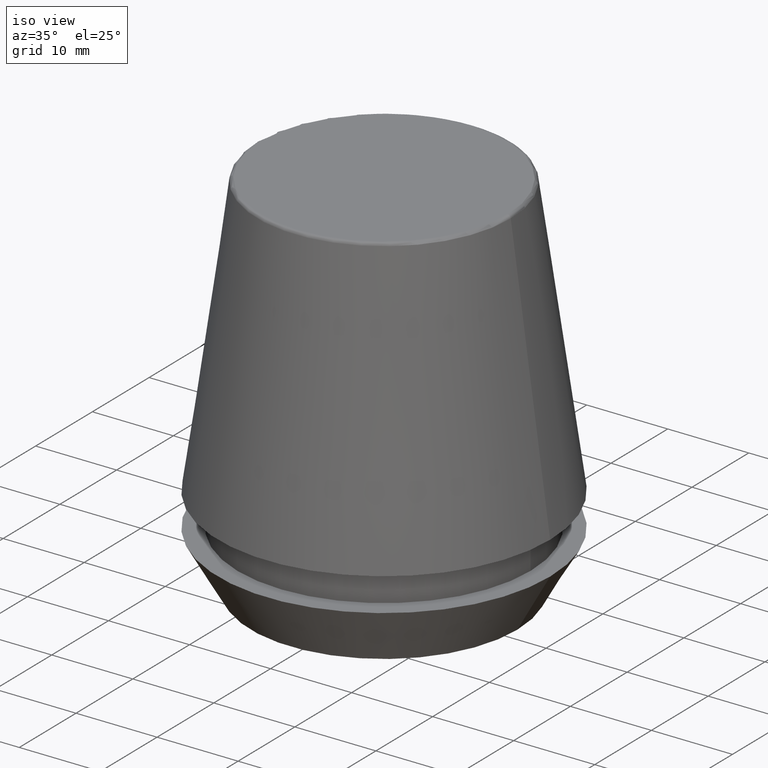
[diagram: clean part render]
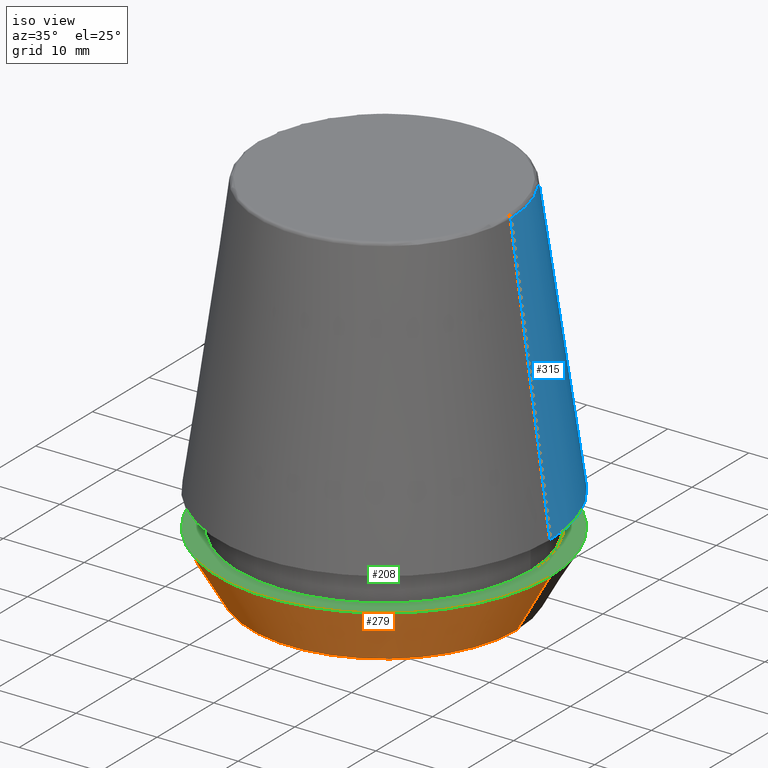
[diagram: same view with three faces highlighted in distinct colors, each labeled with its STEP entity id]
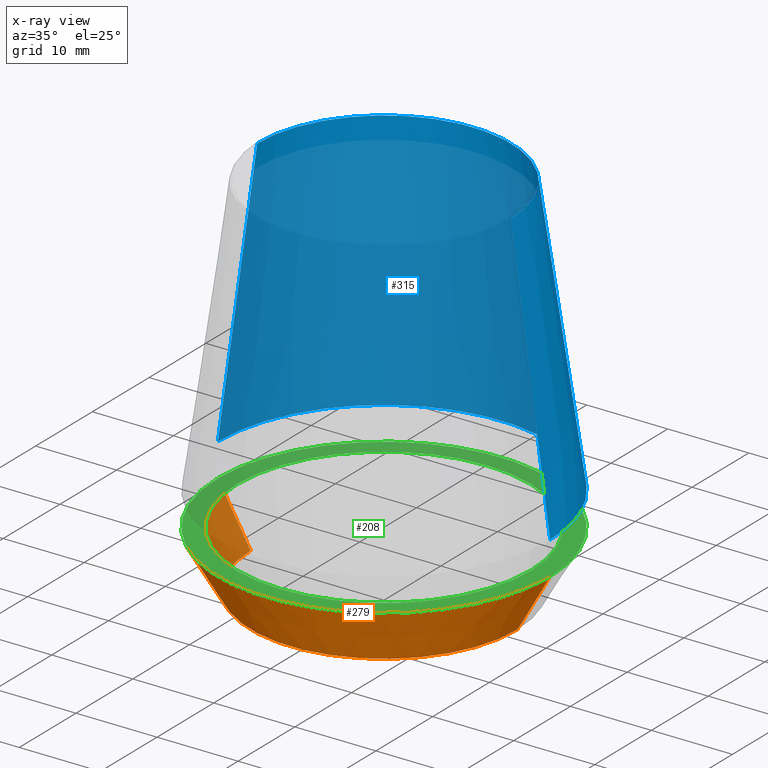
[diagram: x-ray of the same camera — body ghosted, the three highlighted faces saturated]
A machine part, iso view with three faces highlighted in distinct colors.
The next image is the same camera in x-ray (body ghosted, the three faces saturated) — at least one of them is partly hidden behind the body in this view.
Their STEP definitions:

[orange] entity #279 — the highlighted conical surface has half-angle 30 deg.
#31 = FACE_OUTER_BOUND ( 'NONE', #335, .T. ) ;
#37 = AXIS2_PLACEMENT_3D ( 'NONE', #349, #293, #269 ) ;
#80 = ORIENTED_EDGE ( 'NONE', *, *, #188, .T. ) ;
#83 = CARTESIAN_POINT ( 'NONE',  ( -16.45854811567268100, 2.015590826847124800E-015, 0.0000000000000000000 ) ) ;
#92 = EDGE_CURVE ( 'NONE', #324, #213, #108, .T. ) ;
#107 = CIRCLE ( 'NONE', #191, 20.50000000000000000 ) ;
#108 = LINE ( 'NONE', #83, #137 ) ;
#125 = CARTESIAN_POINT ( 'NONE',  ( -16.45854811567268100, 2.263058382549599700E-015, 0.0000000000000000000 ) ) ;
#127 = CIRCLE ( 'NONE', #37, 16.45854811567268100 ) ;
#130 = DIRECTION ( 'NONE',  ( 1.000000000000000000, 0.0000000000000000000, 0.0000000000000000000 ) ) ;
#137 = VECTOR ( 'NONE', #242, 1000.000000000000000 ) ;
#145 = EDGE_CURVE ( 'NONE', #324, #313, #127, .T. ) ;
#157 = DIRECTION ( 'NONE',  ( 1.000000000000000000, 0.0000000000000000000, 0.0000000000000000000 ) ) ;
#164 = CARTESIAN_POINT ( 'NONE',  ( -20.50000000000000000, 2.510525938252074100E-015, 7.000000000000006200 ) ) ;
#188 = EDGE_CURVE ( 'NONE', #313, #354, #283, .T. ) ;
#190 = CARTESIAN_POINT ( 'NONE',  ( 0.0000000000000000000, 0.0000000000000000000, 0.0000000000000000000 ) ) ;
#191 = AXIS2_PLACEMENT_3D ( 'NONE', #248, #309, #130 ) ;
#201 = EDGE_CURVE ( 'NONE', #213, #354, #107, .T. ) ;
#213 = VERTEX_POINT ( 'NONE', #164 ) ;
#221 = CARTESIAN_POINT ( 'NONE',  ( 16.45854811567268100, 0.0000000000000000000, 0.0000000000000000000 ) ) ;
#223 = CARTESIAN_POINT ( 'NONE',  ( 20.50000000000000000, 0.0000000000000000000, 7.000000000000006200 ) ) ;
#230 = ORIENTED_EDGE ( 'NONE', *, *, #145, .T. ) ;
#234 = AXIS2_PLACEMENT_3D ( 'NONE', #190, #384, #157 ) ;
#242 = DIRECTION ( 'NONE',  ( -0.4999999999999941700, 6.123233995736694500E-017, 0.8660254037844420400 ) ) ;
#248 = CARTESIAN_POINT ( 'NONE',  ( 0.0000000000000000000, 0.0000000000000000000, 7.000000000000006200 ) ) ;
#266 = DIRECTION ( 'NONE',  ( 0.4999999999999941700, 0.0000000000000000000, 0.8660254037844420400 ) ) ;
#269 = DIRECTION ( 'NONE',  ( 1.000000000000000000, 0.0000000000000000000, 0.0000000000000000000 ) ) ;
#272 = ORIENTED_EDGE ( 'NONE', *, *, #92, .F. ) ;
#279 = ADVANCED_FACE ( 'NONE', ( #31 ), #320, .T. ) ;
#283 = LINE ( 'NONE', #290, #351 ) ;
#290 = CARTESIAN_POINT ( 'NONE',  ( 16.45854811567268100, 0.0000000000000000000, 0.0000000000000000000 ) ) ;
#293 = DIRECTION ( 'NONE',  ( -0.0000000000000000000, -0.0000000000000000000, 1.000000000000000000 ) ) ;
#298 = ORIENTED_EDGE ( 'NONE', *, *, #201, .F. ) ;
#309 = DIRECTION ( 'NONE',  ( -0.0000000000000000000, -0.0000000000000000000, 1.000000000000000000 ) ) ;
#313 = VERTEX_POINT ( 'NONE', #221 ) ;
#320 = CONICAL_SURFACE ( 'NONE', #234, 16.45854811567268100, 0.5235987755982921500 ) ;
#324 = VERTEX_POINT ( 'NONE', #125 ) ;
#335 = EDGE_LOOP ( 'NONE', ( #272, #230, #80, #298 ) ) ;
#349 = CARTESIAN_POINT ( 'NONE',  ( 0.0000000000000000000, 0.0000000000000000000, 0.0000000000000000000 ) ) ;
#351 = VECTOR ( 'NONE', #266, 1000.000000000000000 ) ;
#354 = VERTEX_POINT ( 'NONE', #223 ) ;
#384 = DIRECTION ( 'NONE',  ( -0.0000000000000000000, -0.0000000000000000000, 1.000000000000000000 ) ) ;

[blue] entity #315 — the highlighted conical surface has half-angle 8 deg.
#17 = DIRECTION ( 'NONE',  ( 0.1391731009600587200, 1.704378926181473400E-017, -0.9902680687415712500 ) ) ;
#25 = ORIENTED_EDGE ( 'NONE', *, *, #381, .F. ) ;
#39 = ORIENTED_EDGE ( 'NONE', *, *, #143, .T. ) ;
#40 = CARTESIAN_POINT ( 'NONE',  ( 20.50032537154048700, 2.510565784773633700E-015, 11.09999999999999800 ) ) ;
#41 = CARTESIAN_POINT ( 'NONE',  ( -20.50032537154048700, 0.0000000000000000000, 11.09999999999999800 ) ) ;
#51 = LINE ( 'NONE', #233, #361 ) ;
#91 = DIRECTION ( 'NONE',  ( 0.0000000000000000000, 0.0000000000000000000, -1.000000000000000000 ) ) ;
#93 = CIRCLE ( 'NONE', #94, 20.50032537154048700 ) ;
#94 = AXIS2_PLACEMENT_3D ( 'NONE', #160, #340, #193 ) ;
#97 = ORIENTED_EDGE ( 'NONE', *, *, #133, .F. ) ;
#120 = VERTEX_POINT ( 'NONE', #243 ) ;
#133 = EDGE_CURVE ( 'NONE', #237, #120, #217, .T. ) ;
#143 = EDGE_CURVE ( 'NONE', #237, #247, #51, .T. ) ;
#150 = CARTESIAN_POINT ( 'NONE',  ( -20.50032537154048700, 0.0000000000000000000, 11.09999999999999800 ) ) ;
#151 = LINE ( 'NONE', #150, #302 ) ;
#160 = CARTESIAN_POINT ( 'NONE',  ( 0.0000000000000000000, 0.0000000000000000000, 11.09999999999999800 ) ) ;
#163 = CONICAL_SURFACE ( 'NONE', #336, 20.50032537154048700, 0.1396263401595396200 ) ;
#168 = DIRECTION ( 'NONE',  ( 1.000000000000000000, 0.0000000000000000000, 0.0000000000000000000 ) ) ;
#173 = FACE_OUTER_BOUND ( 'NONE', #316, .T. ) ;
#193 = DIRECTION ( 'NONE',  ( 1.000000000000000000, 0.0000000000000000000, 0.0000000000000000000 ) ) ;
#203 = DIRECTION ( 'NONE',  ( -0.0000000000000000000, -0.0000000000000000000, 1.000000000000000000 ) ) ;
#209 = AXIS2_PLACEMENT_3D ( 'NONE', #379, #203, #168 ) ;
#217 = CIRCLE ( 'NONE', #209, 15.64384277279740400 ) ;
#233 = CARTESIAN_POINT ( 'NONE',  ( 20.50032537154048700, 2.510565784773633700E-015, 11.09999999999999800 ) ) ;
#237 = VERTEX_POINT ( 'NONE', #369 ) ;
#243 = CARTESIAN_POINT ( 'NONE',  ( -15.64384277279740400, 0.0000000000000000000, 45.65566924038402900 ) ) ;
#247 = VERTEX_POINT ( 'NONE', #40 ) ;
#251 = DIRECTION ( 'NONE',  ( -0.1391731009600587200, 0.0000000000000000000, -0.9902680687415712500 ) ) ;
#302 = VECTOR ( 'NONE', #251, 1000.000000000000000 ) ;
#303 = VERTEX_POINT ( 'NONE', #41 ) ;
#306 = DIRECTION ( 'NONE',  ( -1.000000000000000000, 0.0000000000000000000, 0.0000000000000000000 ) ) ;
#315 = ADVANCED_FACE ( 'NONE', ( #173 ), #163, .T. ) ;
#316 = EDGE_LOOP ( 'NONE', ( #97, #39, #331, #25 ) ) ;
#331 = ORIENTED_EDGE ( 'NONE', *, *, #362, .T. ) ;
#336 = AXIS2_PLACEMENT_3D ( 'NONE', #337, #91, #306 ) ;
#337 = CARTESIAN_POINT ( 'NONE',  ( 0.0000000000000000000, 0.0000000000000000000, 11.09999999999999800 ) ) ;
#340 = DIRECTION ( 'NONE',  ( -0.0000000000000000000, -0.0000000000000000000, 1.000000000000000000 ) ) ;
#361 = VECTOR ( 'NONE', #17, 1000.000000000000000 ) ;
#362 = EDGE_CURVE ( 'NONE', #247, #303, #93, .T. ) ;
#369 = CARTESIAN_POINT ( 'NONE',  ( 15.64384277279740400, 2.213191991290356800E-015, 45.65566924038402900 ) ) ;
#379 = CARTESIAN_POINT ( 'NONE',  ( 0.0000000000000000000, 0.0000000000000000000, 45.65566924038402900 ) ) ;
#381 = EDGE_CURVE ( 'NONE', #120, #303, #151, .T. ) ;

[green] entity #208 — the highlighted planar face has unit normal (0, 0, -1).
#5 = CARTESIAN_POINT ( 'NONE',  ( 18.10000000000000100, 0.0000000000000000000, 6.999999999999999100 ) ) ;
#11 = CIRCLE ( 'NONE', #359, 18.10000000000000100 ) ;
#35 = DIRECTION ( 'NONE',  ( -0.0000000000000000000, -0.0000000000000000000, 1.000000000000000000 ) ) ;
#57 = DIRECTION ( 'NONE',  ( 1.000000000000000000, 0.0000000000000000000, 0.0000000000000000000 ) ) ;
#62 = EDGE_CURVE ( 'NONE', #354, #213, #158, .T. ) ;
#65 = VERTEX_POINT ( 'NONE', #225 ) ;
#67 = DIRECTION ( 'NONE',  ( 0.0000000000000000000, 0.0000000000000000000, -1.000000000000000000 ) ) ;
#72 = CARTESIAN_POINT ( 'NONE',  ( 0.0000000000000000000, 20.50000000000000000, 7.000000000000002700 ) ) ;
#79 = ORIENTED_EDGE ( 'NONE', *, *, #201, .T. ) ;
#107 = CIRCLE ( 'NONE', #191, 20.50000000000000000 ) ;
#109 = AXIS2_PLACEMENT_3D ( 'NONE', #72, #67, #124 ) ;
#112 = EDGE_CURVE ( 'NONE', #65, #304, #139, .T. ) ;
#115 = CARTESIAN_POINT ( 'NONE',  ( 0.0000000000000000000, 0.0000000000000000000, 6.999999999999999100 ) ) ;
#118 = DIRECTION ( 'NONE',  ( 1.000000000000000000, 0.0000000000000000000, 0.0000000000000000000 ) ) ;
#124 = DIRECTION ( 'NONE',  ( -1.000000000000000000, 0.0000000000000000000, -0.0000000000000000000 ) ) ;
#130 = DIRECTION ( 'NONE',  ( 1.000000000000000000, 0.0000000000000000000, 0.0000000000000000000 ) ) ;
#138 = CARTESIAN_POINT ( 'NONE',  ( 0.0000000000000000000, 0.0000000000000000000, 7.000000000000006200 ) ) ;
#139 = CIRCLE ( 'NONE', #286, 18.10000000000000100 ) ;
#158 = CIRCLE ( 'NONE', #171, 20.50000000000000000 ) ;
#164 = CARTESIAN_POINT ( 'NONE',  ( -20.50000000000000000, 2.510525938252074100E-015, 7.000000000000006200 ) ) ;
#171 = AXIS2_PLACEMENT_3D ( 'NONE', #138, #206, #57 ) ;
#174 = ORIENTED_EDGE ( 'NONE', *, *, #376, .F. ) ;
#183 = EDGE_LOOP ( 'NONE', ( #199, #79 ) ) ;
#189 = DIRECTION ( 'NONE',  ( 1.000000000000000000, 0.0000000000000000000, 0.0000000000000000000 ) ) ;
#191 = AXIS2_PLACEMENT_3D ( 'NONE', #248, #309, #130 ) ;
#199 = ORIENTED_EDGE ( 'NONE', *, *, #62, .T. ) ;
#201 = EDGE_CURVE ( 'NONE', #213, #354, #107, .T. ) ;
#206 = DIRECTION ( 'NONE',  ( -0.0000000000000000000, -0.0000000000000000000, 1.000000000000000000 ) ) ;
#208 = ADVANCED_FACE ( 'NONE', ( #275, #343 ), #265, .F. ) ;
#213 = VERTEX_POINT ( 'NONE', #164 ) ;
#223 = CARTESIAN_POINT ( 'NONE',  ( 20.50000000000000000, 0.0000000000000000000, 7.000000000000006200 ) ) ;
#225 = CARTESIAN_POINT ( 'NONE',  ( -18.10000000000000100, 2.216610706456709600E-015, 6.999999999999999100 ) ) ;
#236 = ORIENTED_EDGE ( 'NONE', *, *, #112, .F. ) ;
#248 = CARTESIAN_POINT ( 'NONE',  ( 0.0000000000000000000, 0.0000000000000000000, 7.000000000000006200 ) ) ;
#265 = PLANE ( 'NONE',  #109 ) ;
#275 = FACE_BOUND ( 'NONE', #333, .T. ) ;
#286 = AXIS2_PLACEMENT_3D ( 'NONE', #115, #326, #189 ) ;
#304 = VERTEX_POINT ( 'NONE', #5 ) ;
#308 = CARTESIAN_POINT ( 'NONE',  ( 0.0000000000000000000, 0.0000000000000000000, 6.999999999999999100 ) ) ;
#309 = DIRECTION ( 'NONE',  ( -0.0000000000000000000, -0.0000000000000000000, 1.000000000000000000 ) ) ;
#326 = DIRECTION ( 'NONE',  ( -0.0000000000000000000, -0.0000000000000000000, 1.000000000000000000 ) ) ;
#333 = EDGE_LOOP ( 'NONE', ( #174, #236 ) ) ;
#343 = FACE_OUTER_BOUND ( 'NONE', #183, .T. ) ;
#354 = VERTEX_POINT ( 'NONE', #223 ) ;
#359 = AXIS2_PLACEMENT_3D ( 'NONE', #308, #35, #118 ) ;
#376 = EDGE_CURVE ( 'NONE', #304, #65, #11, .T. ) ;